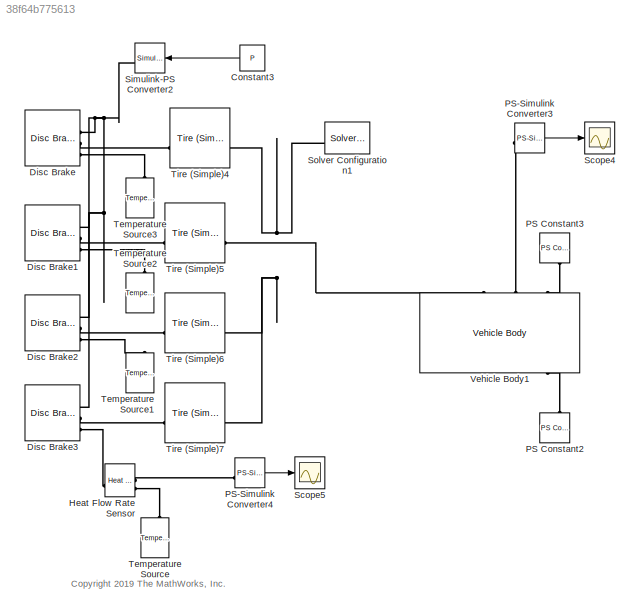
MODEL slx_38f64b775613
KIND model
CONFIG AbsTol = 1e-3
CONFIG EnableMultiTasking = on
CONFIG FixedStep = auto
CONFIG MaxStep = auto
CONFIG MinStep = auto
CONFIG PreLoadFcn = M = 1000; %kg\nV0 = 13.9; %m/s which is around 50 km/h\nP = 65; %bar
CONFIG RelTol = 1e-3
CONFIG SampleTimeConstraint = Unconstrained
CONFIG SolverName = VariableStepAuto
CONFIG StartTime = 0.0
CONFIG StopTime = 5
BLOCK [Constant] Constant3
  NameLocation = top
  Value = P
BLOCK [Reference] Disc Brake  REF=sdl_lib/Brakes & Detents/Rotational/Disc Brake
  SourceBlock = sdl_lib/Brakes & Detents/Rotational/Disc Brake
  SourceType = Disc Brake
BLOCK [Reference] Disc Brake1  REF=sdl_lib/Brakes & Detents/Rotational/Disc Brake
  SourceBlock = sdl_lib/Brakes & Detents/Rotational/Disc Brake
  SourceType = Disc Brake
BLOCK [Reference] Disc Brake2  REF=sdl_lib/Brakes & Detents/Rotational/Disc Brake
  SourceBlock = sdl_lib/Brakes & Detents/Rotational/Disc Brake
  SourceType = Disc Brake
BLOCK [Reference] Disc Brake3  REF=sdl_lib/Brakes & Detents/Rotational/Disc Brake
  SourceBlock = sdl_lib/Brakes & Detents/Rotational/Disc Brake
  SourceType = Disc Brake
BLOCK [Reference] Heat Flow Rate Sensor  REF=fl_lib/Thermal/Thermal Sensors/Heat Flow Rate
Sensor
  SourceBlock = fl_lib/Thermal/Thermal Sensors/Heat Flow Rate\nSensor
  SourceType = Heat Flow Rate\nSensor
BLOCK [Reference] PS Constant2  REF=fl_lib/Physical Signals/Sources/PS Constant
  NameLocation = right
  SourceBlock = fl_lib/Physical Signals/Sources/PS Constant
  SourceType = PS Constant
BLOCK [Reference] PS Constant3  REF=fl_lib/Physical Signals/Sources/PS Constant
  NameLocation = left
  SourceBlock = fl_lib/Physical Signals/Sources/PS Constant
  SourceType = PS Constant
BLOCK [Reference] PS-Simulink Converter3  REF=nesl_utility/PS-Simulink
Converter
  SourceBlock = nesl_utility/PS-Simulink\nConverter
  SourceType = PS-Simulink\nConverter
BLOCK [Reference] PS-Simulink Converter4  REF=nesl_utility/PS-Simulink
Converter
  NameLocation = top
  SourceBlock = nesl_utility/PS-Simulink\nConverter
  SourceType = PS-Simulink\nConverter
BLOCK [Scope] Scope4
  Floating = off
  NumInputPorts = 1
  ScopeSpecificationString = Simulink.scopes.TimeScopeBlockCfg('CurrentConfiguration', extmgr.ConfigurationSet(extmgr.Configuration('Core','General UI',true),extmgr.Configuration('Core','Source UI',true),extmgr.Configuration('Sources','WiredSimulink',true,'DataLoggingLimitDataPoints',true,'DataLoggingSaveFormat','StructureWithTime','DataLoggingDecimation','1','DataLoggingDecimateData',true,'DataLogging',true,'DataLoggingVaria...<+1714ch>
BLOCK [Scope] Scope5
  Floating = off
  NumInputPorts = 1
  ScopeSpecificationString = Simulink.scopes.TimeScopeBlockCfg('CurrentConfiguration', extmgr.ConfigurationSet(extmgr.Configuration('Core','General UI',true),extmgr.Configuration('Core','Source UI',true),extmgr.Configuration('Sources','WiredSimulink',true,'DataLoggingVariableName','ScopeData3'),extmgr.Configuration('Visuals','Time Domain',true,'SerializedDisplays',{struct('MinYLimReal','-4354.12884','MaxYLimReal','39187.15957...<+1436ch>
BLOCK [Reference] Simulink-PS Converter2  REF=nesl_utility/Simulink-PS
Converter
  NameLocation = top
  SourceBlock = nesl_utility/Simulink-PS\nConverter
  SourceType = Simulink-PS\nConverter
BLOCK [Reference] Solver Configuration1  REF=nesl_utility/Solver
Configuration
  NameLocation = top
  SourceBlock = nesl_utility/Solver\nConfiguration
  SourceType = Solver\nConfiguration
BLOCK [Reference] Temperature Source  REF=fl_lib/Thermal/Thermal Sources/Temperature Source
  NameLocation = right
  SourceBlock = fl_lib/Thermal/Thermal Sources/Temperature Source
  SourceType = Temperature Source
BLOCK [Reference] Temperature Source1  REF=fl_lib/Thermal/Thermal Sources/Temperature Source
  NameLocation = right
  SourceBlock = fl_lib/Thermal/Thermal Sources/Temperature Source
  SourceType = Temperature Source
BLOCK [Reference] Temperature Source2  REF=fl_lib/Thermal/Thermal Sources/Temperature Source
  NameLocation = right
  SourceBlock = fl_lib/Thermal/Thermal Sources/Temperature Source
  SourceType = Temperature Source
BLOCK [Reference] Temperature Source3  REF=fl_lib/Thermal/Thermal Sources/Temperature Source
  NameLocation = right
  SourceBlock = fl_lib/Thermal/Thermal Sources/Temperature Source
  SourceType = Temperature Source
BLOCK [Reference] Tire (Simple)4  REF=sdl_lib/Tires & Vehicles/Tire (Simple)
  SourceBlock = sdl_lib/Tires & Vehicles/Tire (Simple)
  SourceType = Tire (Simple)
BLOCK [Reference] Tire (Simple)5  REF=sdl_lib/Tires & Vehicles/Tire (Simple)
  SourceBlock = sdl_lib/Tires & Vehicles/Tire (Simple)
  SourceType = Tire (Simple)
BLOCK [Reference] Tire (Simple)6  REF=sdl_lib/Tires & Vehicles/Tire (Simple)
  SourceBlock = sdl_lib/Tires & Vehicles/Tire (Simple)
  SourceType = Tire (Simple)
BLOCK [Reference] Tire (Simple)7  REF=sdl_lib/Tires & Vehicles/Tire (Simple)
  SourceBlock = sdl_lib/Tires & Vehicles/Tire (Simple)
  SourceType = Tire (Simple)
BLOCK [Reference] Vehicle Body1  REF=sdl_lib/Tires & Vehicles/Vehicle Body
  NameLocation = right
  SourceBlock = sdl_lib/Tires & Vehicles/Vehicle Body
  SourceType = Vehicle Body
ANNOTATION (root): <copyright redacted>
LINE Constant3:1 -> Simulink-PS Converter2:1
LINE PS-Simulink Converter3:1 -> Scope4:1
LINE PS-Simulink Converter4:1 -> Scope5:1
PNET net1: Disc Brake1:LConn1 -- Disc Brake2:LConn1 -- Disc Brake3:LConn1 -- Disc Brake:LConn1 -- Simulink-PS Converter2:RConn1
PLINE Disc Brake1:LConn2 -- Tire (Simple)5:LConn1
PLINE Disc Brake1:LConn3 -- Temperature Source2:LConn1
PLINE Disc Brake2:LConn2 -- Tire (Simple)6:LConn1
PLINE Disc Brake2:LConn3 -- Temperature Source1:LConn1
PLINE Disc Brake3:LConn2 -- Tire (Simple)7:LConn1
PLINE Disc Brake3:LConn3 -- Heat Flow Rate Sensor:LConn1
PLINE Disc Brake:LConn2 -- Tire (Simple)4:LConn1
PLINE Disc Brake:LConn3 -- Temperature Source3:LConn1
PLINE Heat Flow Rate Sensor:RConn1 -- PS-Simulink Converter4:LConn1
PLINE Heat Flow Rate Sensor:RConn2 -- Temperature Source:LConn1
PLINE PS Constant2:RConn1 -- Vehicle Body1:RConn3
PLINE PS Constant3:RConn1 -- Vehicle Body1:LConn3
PLINE PS-Simulink Converter3:LConn1 -- Vehicle Body1:LConn2
PNET net2: Solver Configuration1:RConn1 -- Tire (Simple)4:RConn1 -- Tire (Simple)5:RConn1 -- Tire (Simple)6:RConn1 -- Tire (Simple)7:RConn1 -- Vehicle Body1:LConn1
note: PNET lines group multi-terminal physical nets as a canonical sorted terminal list (undirected conserving connections); 2-terminal nets keep the pairwise PLINE form
